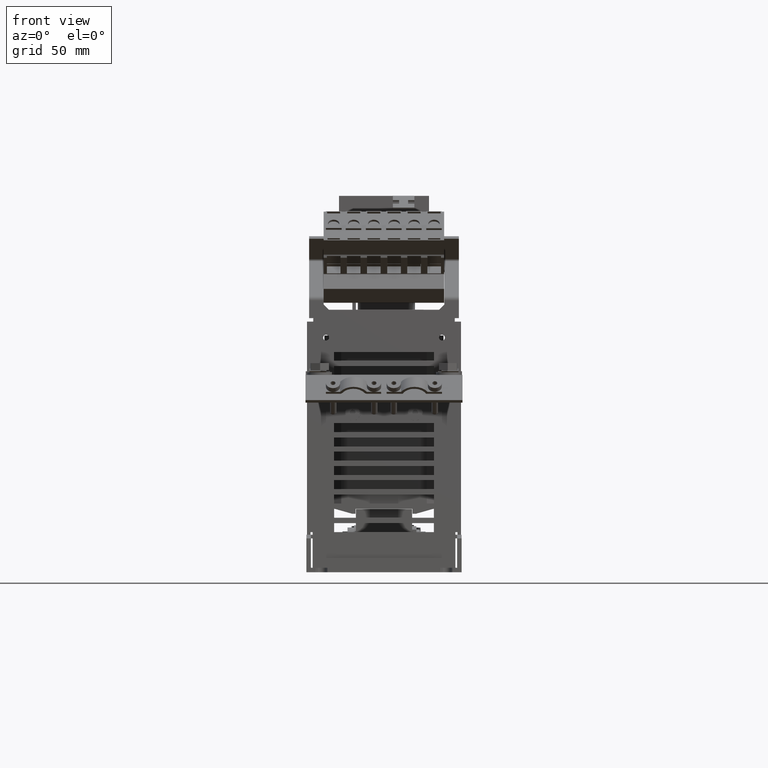
[diagram: clean part render]
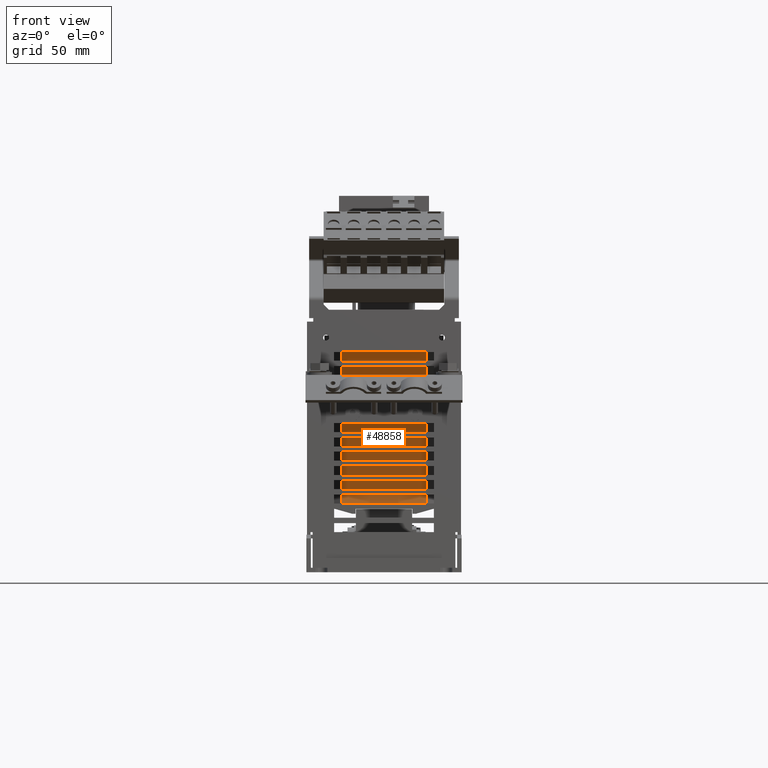
[diagram: same view with one face highlighted and labeled with its STEP entity id]
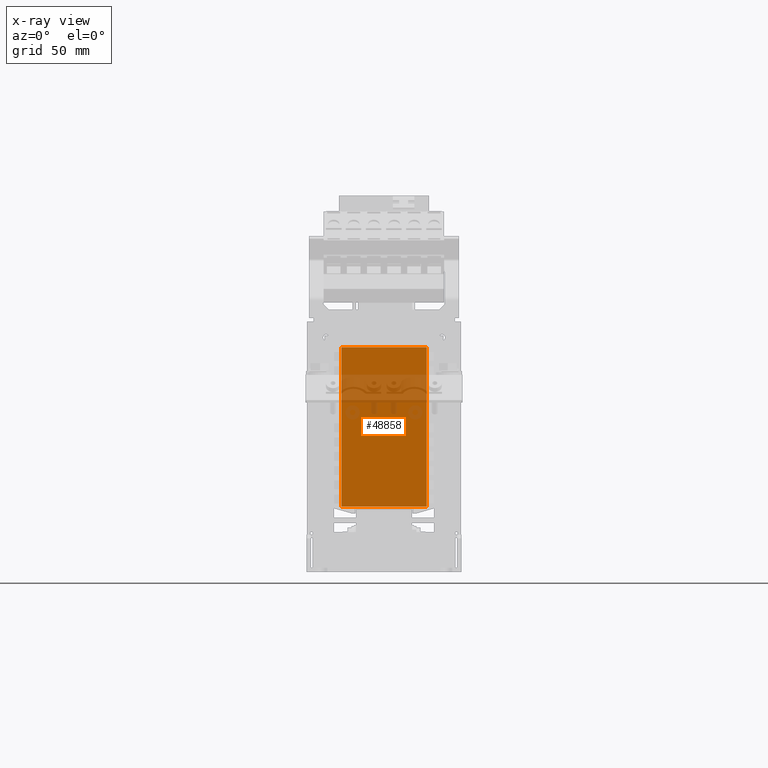
[diagram: x-ray of the same camera — body ghosted, the highlighted face saturated]
A machine part, front view. The second image highlights one B-rep face of the part: STEP entity #48858.
The next image is the same camera in x-ray: the body ghosted, the highlighted face saturated — about 21% of this face is hidden behind the body in this view.
In plain terms, the highlighted planar face has unit normal (0, -1, -0).
Its self-contained STEP definition (entity closure, byte-faithful):
#33923=DIRECTION('',(1.E0,0.E0,2.014851159388E-14));
#33924=VECTOR('',#33923,4.796076951546E1);
#33925=CARTESIAN_POINT('',(-2.398038475762E1,-8.130000000013E1,1.2365E2));
#33926=LINE('',#33925,#33924);
#35771=DIRECTION('',(1.E0,0.E0,2.044481323497E-14));
#35772=VECTOR('',#35771,4.796076951546E1);
#35773=CARTESIAN_POINT('',(-2.398038475762E1,-8.130000000013E1,3.425E1));
#35774=LINE('',#35773,#35772);
#37695=DIRECTION('',(2.022741904373E-14,1.367039715333E-14,-1.E0));
#37696=VECTOR('',#37695,8.94E1);
#37697=CARTESIAN_POINT('',(-2.398038475762E1,-8.130000000013E1,1.2365E2));
#37698=LINE('',#37697,#37696);
#37699=DIRECTION('',(2.022741904373E-14,1.367039715333E-14,-1.E0));
#37700=VECTOR('',#37699,8.94E1);
#37701=CARTESIAN_POINT('',(2.398038475783E1,-8.130000000013E1,1.2365E2));
#37702=LINE('',#37701,#37700);
#39318=CARTESIAN_POINT('',(-2.398038475762E1,-8.130000000013E1,1.2365E2));
#39320=VERTEX_POINT('',#39318);
#39321=CARTESIAN_POINT('',(2.398038475783E1,-8.130000000013E1,1.2365E2));
#39322=VERTEX_POINT('',#39321);
#39353=CARTESIAN_POINT('',(-2.398038475762E1,-8.130000000013E1,3.425E1));
#39354=VERTEX_POINT('',#39353);
#39355=CARTESIAN_POINT('',(2.398038475784E1,-8.130000000012E1,3.425E1));
#39356=VERTEX_POINT('',#39355);
#48846=CARTESIAN_POINT('',(-2.398038475762E1,-8.130000000013E1,1.2365E2));
#48847=DIRECTION('',(0.E0,-1.E0,-1.351811021644E-14));
#48848=DIRECTION('',(1.E0,0.E0,2.028184745940E-14));
#48849=AXIS2_PLACEMENT_3D('',#48846,#48847,#48848);
#48850=PLANE('',#48849);
#48851=ORIENTED_EDGE('',*,*,#42471,.T.);
#48853=ORIENTED_EDGE('',*,*,#48852,.T.);
#48854=ORIENTED_EDGE('',*,*,#45030,.F.);
#48855=ORIENTED_EDGE('',*,*,#48839,.F.);
#48856=EDGE_LOOP('',(#48851,#48853,#48854,#48855));
#48857=FACE_OUTER_BOUND('',#48856,.F.);
#48858=ADVANCED_FACE('',(#48857),#48850,.T.);
#42471=EDGE_CURVE('',#39320,#39322,#33926,.T.);
#45030=EDGE_CURVE('',#39354,#39356,#35774,.T.);
#48839=EDGE_CURVE('',#39320,#39354,#37698,.T.);
#48852=EDGE_CURVE('',#39322,#39356,#37702,.T.);